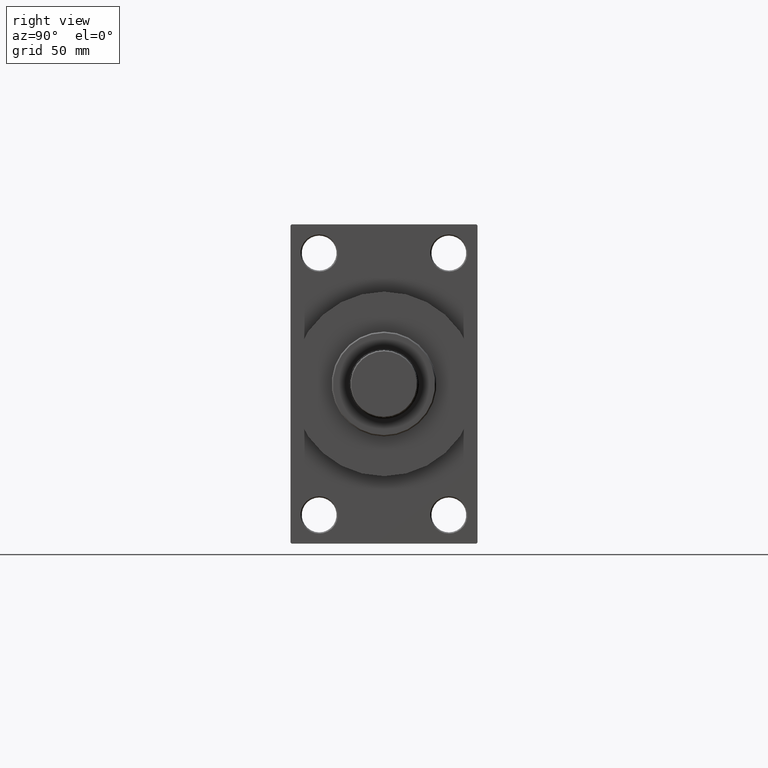
[diagram: clean part render]
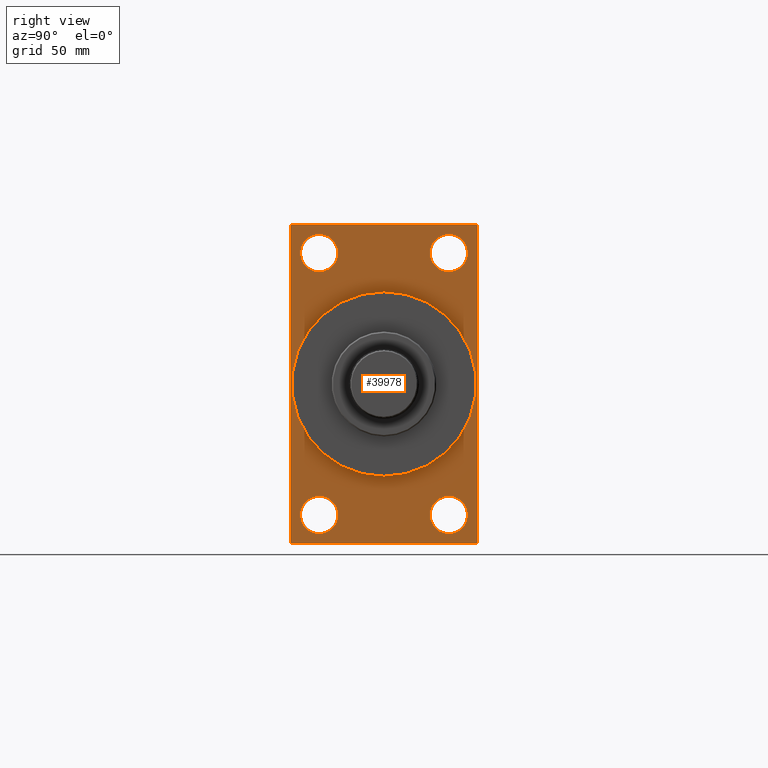
[diagram: same view with one face highlighted and labeled with its STEP entity id]
A machine part, right view. The second image highlights one B-rep face of the part: STEP entity #39978.
In plain terms, the highlighted planar face has unit normal (-1, 0, 0).
Its self-contained STEP definition (entity closure, byte-faithful):
#539 = EDGE_CURVE ( 'NONE', #16225, #42912, #1144, .T. ) ;
#853 = CARTESIAN_POINT ( 'NONE',  ( 167.9999999999999716, 26.00000000000000000, 60.00000000000000000 ) ) ;
#969 = CARTESIAN_POINT ( 'NONE',  ( 167.9999999999999716, 37.50000000000000000, 63.99999999999998579 ) ) ;
#1144 = LINE ( 'NONE', #11774, #9866 ) ;
#1373 = VERTEX_POINT ( 'NONE', #2453 ) ;
#1687 = VERTEX_POINT ( 'NONE', #40875 ) ;
#1760 = DIRECTION ( 'NONE',  ( 0.000000000000000000, 0.000000000000000000, 1.000000000000000000 ) ) ;
#2221 = EDGE_CURVE ( 'NONE', #32892, #7676, #41474, .T. ) ;
#2263 = CARTESIAN_POINT ( 'NONE',  ( 167.9999999999999716, 26.00000000000000000, -44.99999999999998579 ) ) ;
#2276 = VECTOR ( 'NONE', #35983, 1000.000000000000000 ) ;
#2453 = CARTESIAN_POINT ( 'NONE',  ( 167.9999999999999716, -25.99999999999999645, -44.99999999999998579 ) ) ;
#2567 = DIRECTION ( 'NONE',  ( 0.000000000000000000, 0.000000000000000000, -1.000000000000000000 ) ) ;
#2672 = FACE_BOUND ( 'NONE', #28652, .T. ) ;
#2909 = PLANE ( 'NONE',  #35505 ) ;
#3144 = FACE_BOUND ( 'NONE', #28000, .T. ) ;
#3871 = VERTEX_POINT ( 'NONE', #31866 ) ;
#4363 = VECTOR ( 'NONE', #6676, 1000.000000000000114 ) ;
#4831 = CIRCLE ( 'NONE', #22563, 37.00000000000000000 ) ;
#4983 = CARTESIAN_POINT ( 'NONE',  ( 167.9999999999999716, 37.49999999999999289, -64.00000000000000000 ) ) ;
#5401 = VECTOR ( 'NONE', #15686, 1000.000000000000000 ) ;
#5412 = EDGE_CURVE ( 'NONE', #14909, #20016, #22914, .T. ) ;
#5442 = ORIENTED_EDGE ( 'NONE', *, *, #42744, .T. ) ;
#6000 = AXIS2_PLACEMENT_3D ( 'NONE', #39438, #24975, #2567 ) ;
#6085 = EDGE_CURVE ( 'NONE', #3871, #8570, #43134, .T. ) ;
#6250 = EDGE_LOOP ( 'NONE', ( #31648, #35531 ) ) ;
#6676 = DIRECTION ( 'NONE',  ( -0.000000000000000000, 0.7071067811865376918, 0.7071067811865573427 ) ) ;
#6921 = CARTESIAN_POINT ( 'NONE',  ( 167.9999999999999716, 37.49999999999999289, -63.50000000000001421 ) ) ;
#7676 = VERTEX_POINT ( 'NONE', #14072 ) ;
#8218 = CIRCLE ( 'NONE', #14371, 7.500000000000007105 ) ;
#8244 = CARTESIAN_POINT ( 'NONE',  ( 167.9999999999999716, -25.99999999999999645, 52.50000000000000000 ) ) ;
#8392 = DIRECTION ( 'NONE',  ( -0.000000000000000000, -0.7071067811865524577, -0.7071067811865426878 ) ) ;
#8481 = DIRECTION ( 'NONE',  ( -1.000000000000000000, 0.000000000000000000, -0.000000000000000000 ) ) ;
#8555 = CARTESIAN_POINT ( 'NONE',  ( 167.9999999999999716, 37.00000000000000000, 63.99999999999998579 ) ) ;
#8570 = VERTEX_POINT ( 'NONE', #2263 ) ;
#9481 = DIRECTION ( 'NONE',  ( -1.000000000000000000, 0.000000000000000000, -0.000000000000000000 ) ) ;
#9613 = CARTESIAN_POINT ( 'NONE',  ( 167.9999999999999716, 37.50000000000000000, 63.49999999999998579 ) ) ;
#9866 = VECTOR ( 'NONE', #8392, 1000.000000000000000 ) ;
#10407 = DIRECTION ( 'NONE',  ( 0.000000000000000000, 0.000000000000000000, 1.000000000000000000 ) ) ;
#10681 = ORIENTED_EDGE ( 'NONE', *, *, #25110, .T. ) ;
#10954 = CIRCLE ( 'NONE', #46350, 7.500000000000007105 ) ;
#11315 = CARTESIAN_POINT ( 'NONE',  ( 167.9999999999999716, 37.49999999999999289, -63.50000000000001421 ) ) ;
#11367 = VECTOR ( 'NONE', #11767, 1000.000000000000114 ) ;
#11632 = VERTEX_POINT ( 'NONE', #46227 ) ;
#11683 = LINE ( 'NONE', #26367, #18567 ) ;
#11767 = DIRECTION ( 'NONE',  ( 0.000000000000000000, -0.7071067811865474617, 0.7071067811865474617 ) ) ;
#11774 = CARTESIAN_POINT ( 'NONE',  ( 167.9999999999999716, -37.49999999999999289, 63.50000000000000000 ) ) ;
#11804 = EDGE_CURVE ( 'NONE', #21720, #46250, #42070, .T. ) ;
#12177 = CARTESIAN_POINT ( 'NONE',  ( 167.9999999999999716, -37.49999999999999289, 63.50000000000000000 ) ) ;
#12678 = AXIS2_PLACEMENT_3D ( 'NONE', #28498, #9481, #28012 ) ;
#12985 = EDGE_LOOP ( 'NONE', ( #24717, #39377 ) ) ;
#13487 = AXIS2_PLACEMENT_3D ( 'NONE', #8244, #22945, #37634 ) ;
#13768 = DIRECTION ( 'NONE',  ( -1.000000000000000000, 0.000000000000000000, -0.000000000000000000 ) ) ;
#13898 = ORIENTED_EDGE ( 'NONE', *, *, #35466, .T. ) ;
#13928 = LINE ( 'NONE', #6921, #4363 ) ;
#14072 = CARTESIAN_POINT ( 'NONE',  ( 167.9999999999999716, -25.99999999999999645, 60.00000000000000711 ) ) ;
#14371 = AXIS2_PLACEMENT_3D ( 'NONE', #46108, #27534, #1760 ) ;
#14488 = CARTESIAN_POINT ( 'NONE',  ( 167.9999999999999716, -25.99999999999999645, 44.99999999999999289 ) ) ;
#14763 = EDGE_CURVE ( 'NONE', #18149, #1687, #4831, .T. ) ;
#14909 = VERTEX_POINT ( 'NONE', #9613 ) ;
#15642 = ORIENTED_EDGE ( 'NONE', *, *, #539, .T. ) ;
#15650 = VERTEX_POINT ( 'NONE', #8555 ) ;
#15686 = DIRECTION ( 'NONE',  ( 0.000000000000000000, -5.421010862427522170E-17, -1.000000000000000000 ) ) ;
#15898 = DIRECTION ( 'NONE',  ( 1.000000000000000000, 0.000000000000000000, 0.000000000000000000 ) ) ;
#16036 = DIRECTION ( 'NONE',  ( -1.000000000000000000, 0.000000000000000000, -0.000000000000000000 ) ) ;
#16225 = VERTEX_POINT ( 'NONE', #17517 ) ;
#16545 = CARTESIAN_POINT ( 'NONE',  ( 167.9999999999999716, -25.99999999999999645, -60.00000000000000000 ) ) ;
#17143 = DIRECTION ( 'NONE',  ( -1.000000000000000000, 0.000000000000000000, -0.000000000000000000 ) ) ;
#17240 = ORIENTED_EDGE ( 'NONE', *, *, #14763, .F. ) ;
#17378 = FACE_BOUND ( 'NONE', #12985, .T. ) ;
#17517 = CARTESIAN_POINT ( 'NONE',  ( 167.9999999999999716, -37.00000000000001421, 63.99999999999997158 ) ) ;
#17528 = DIRECTION ( 'NONE',  ( -1.000000000000000000, 0.000000000000000000, -0.000000000000000000 ) ) ;
#17811 = AXIS2_PLACEMENT_3D ( 'NONE', #23873, #8481, #31318 ) ;
#17847 = FACE_BOUND ( 'NONE', #6250, .T. ) ;
#18149 = VERTEX_POINT ( 'NONE', #20916 ) ;
#18566 = CARTESIAN_POINT ( 'NONE',  ( 167.9999999999999716, -37.49999999999999289, -63.50000000000002842 ) ) ;
#18567 = VECTOR ( 'NONE', #41080, 1000.000000000000000 ) ;
#20016 = VERTEX_POINT ( 'NONE', #11315 ) ;
#20572 = LINE ( 'NONE', #28025, #41508 ) ;
#20782 = EDGE_CURVE ( 'NONE', #35078, #1373, #28839, .T. ) ;
#20916 = CARTESIAN_POINT ( 'NONE',  ( 167.9999999999999716, 4.531193156845206793E-15, -37.00000000000000000 ) ) ;
#20917 = EDGE_CURVE ( 'NONE', #7676, #32892, #34236, .T. ) ;
#21231 = FACE_OUTER_BOUND ( 'NONE', #35308, .T. ) ;
#21258 = DIRECTION ( 'NONE',  ( -1.000000000000000000, 0.000000000000000000, -0.000000000000000000 ) ) ;
#21720 = VERTEX_POINT ( 'NONE', #24622 ) ;
#22365 = AXIS2_PLACEMENT_3D ( 'NONE', #35037, #16036, #27326 ) ;
#22563 = AXIS2_PLACEMENT_3D ( 'NONE', #23364, #15898, #26500 ) ;
#22826 = ORIENTED_EDGE ( 'NONE', *, *, #39519, .T. ) ;
#22914 = LINE ( 'NONE', #969, #5401 ) ;
#22945 = DIRECTION ( 'NONE',  ( -1.000000000000000000, 0.000000000000000000, -0.000000000000000000 ) ) ;
#23364 = CARTESIAN_POINT ( 'NONE',  ( 167.9999999999999716, 0.000000000000000000, 0.000000000000000000 ) ) ;
#23873 = CARTESIAN_POINT ( 'NONE',  ( 167.9999999999999716, 26.00000000000000000, -52.49999999999999289 ) ) ;
#23891 = EDGE_CURVE ( 'NONE', #42933, #11632, #24342, .T. ) ;
#24342 = CIRCLE ( 'NONE', #27383, 7.500000000000007105 ) ;
#24359 = FACE_BOUND ( 'NONE', #45282, .T. ) ;
#24361 = DIRECTION ( 'NONE',  ( 0.000000000000000000, 0.000000000000000000, 1.000000000000000000 ) ) ;
#24383 = EDGE_CURVE ( 'NONE', #11632, #42933, #8218, .T. ) ;
#24481 = ORIENTED_EDGE ( 'NONE', *, *, #2221, .T. ) ;
#24622 = CARTESIAN_POINT ( 'NONE',  ( 167.9999999999999716, 37.00000000000002132, -64.00000000000000000 ) ) ;
#24717 = ORIENTED_EDGE ( 'NONE', *, *, #24383, .T. ) ;
#24975 = DIRECTION ( 'NONE',  ( 1.000000000000000000, 0.000000000000000000, 0.000000000000000000 ) ) ;
#25110 = EDGE_CURVE ( 'NONE', #21720, #20016, #13928, .T. ) ;
#26367 = CARTESIAN_POINT ( 'NONE',  ( 167.9999999999999716, -36.99999999999999289, -64.00000000000001421 ) ) ;
#26500 = DIRECTION ( 'NONE',  ( 0.000000000000000000, 0.000000000000000000, -1.000000000000000000 ) ) ;
#26551 = ORIENTED_EDGE ( 'NONE', *, *, #31510, .F. ) ;
#27326 = DIRECTION ( 'NONE',  ( 0.000000000000000000, 0.000000000000000000, 1.000000000000000000 ) ) ;
#27383 = AXIS2_PLACEMENT_3D ( 'NONE', #31571, #17143, #24361 ) ;
#27534 = DIRECTION ( 'NONE',  ( -1.000000000000000000, 0.000000000000000000, -0.000000000000000000 ) ) ;
#28000 = EDGE_LOOP ( 'NONE', ( #32724, #5442 ) ) ;
#28012 = DIRECTION ( 'NONE',  ( 0.000000000000000000, 0.000000000000000000, 1.000000000000000000 ) ) ;
#28025 = CARTESIAN_POINT ( 'NONE',  ( 167.9999999999999716, -37.49999999999999289, 63.99999999999997158 ) ) ;
#28498 = CARTESIAN_POINT ( 'NONE',  ( 167.9999999999999716, -25.99999999999999645, -52.49999999999999289 ) ) ;
#28652 = EDGE_LOOP ( 'NONE', ( #24481, #39439 ) ) ;
#28705 = CARTESIAN_POINT ( 'NONE',  ( 167.9999999999999716, -25.99999999999999645, 52.50000000000000000 ) ) ;
#28839 = CIRCLE ( 'NONE', #12678, 7.500000000000007105 ) ;
#28864 = ORIENTED_EDGE ( 'NONE', *, *, #34546, .T. ) ;
#30142 = VECTOR ( 'NONE', #37527, 1000.000000000000000 ) ;
#31318 = DIRECTION ( 'NONE',  ( 0.000000000000000000, 0.000000000000000000, 1.000000000000000000 ) ) ;
#31453 = EDGE_CURVE ( 'NONE', #14909, #15650, #47666, .T. ) ;
#31510 = EDGE_CURVE ( 'NONE', #1687, #18149, #38294, .T. ) ;
#31571 = CARTESIAN_POINT ( 'NONE',  ( 167.9999999999999716, 26.00000000000000000, 52.49999999999999289 ) ) ;
#31648 = ORIENTED_EDGE ( 'NONE', *, *, #6085, .T. ) ;
#31866 = CARTESIAN_POINT ( 'NONE',  ( 167.9999999999999716, 26.00000000000000000, -60.00000000000000000 ) ) ;
#32125 = DIRECTION ( 'NONE',  ( 0.000000000000000000, 0.000000000000000000, -1.000000000000000000 ) ) ;
#32132 = LINE ( 'NONE', #35751, #2276 ) ;
#32724 = ORIENTED_EDGE ( 'NONE', *, *, #20782, .T. ) ;
#32892 = VERTEX_POINT ( 'NONE', #14488 ) ;
#33755 = VERTEX_POINT ( 'NONE', #18566 ) ;
#33973 = CARTESIAN_POINT ( 'NONE',  ( 167.9999999999999716, -36.99999999999999289, -64.00000000000001421 ) ) ;
#34236 = CIRCLE ( 'NONE', #13487, 7.500000000000007105 ) ;
#34546 = EDGE_CURVE ( 'NONE', #42912, #33755, #20572, .T. ) ;
#35037 = CARTESIAN_POINT ( 'NONE',  ( 167.9999999999999716, 26.00000000000000000, -52.49999999999999289 ) ) ;
#35078 = VERTEX_POINT ( 'NONE', #16545 ) ;
#35190 = CARTESIAN_POINT ( 'NONE',  ( 167.9999999999999716, 0.000000000000000000, 0.000000000000000000 ) ) ;
#35308 = EDGE_LOOP ( 'NONE', ( #28864, #22826, #44547, #10681, #40482, #44683, #13898, #15642 ) ) ;
#35343 = CARTESIAN_POINT ( 'NONE',  ( 167.9999999999999716, -25.99999999999999645, -52.49999999999999289 ) ) ;
#35466 = EDGE_CURVE ( 'NONE', #15650, #16225, #32132, .T. ) ;
#35505 = AXIS2_PLACEMENT_3D ( 'NONE', #35190, #13768, #42918 ) ;
#35531 = ORIENTED_EDGE ( 'NONE', *, *, #39832, .T. ) ;
#35588 = DIRECTION ( 'NONE',  ( 0.000000000000000000, 0.000000000000000000, 1.000000000000000000 ) ) ;
#35751 = CARTESIAN_POINT ( 'NONE',  ( 167.9999999999999716, 37.50000000000000000, 63.99999999999998579 ) ) ;
#35983 = DIRECTION ( 'NONE',  ( 0.000000000000000000, -1.000000000000000000, -1.850371707708594563E-16 ) ) ;
#37527 = DIRECTION ( 'NONE',  ( 0.000000000000000000, -1.000000000000000000, -1.850371707708594563E-16 ) ) ;
#37634 = DIRECTION ( 'NONE',  ( 0.000000000000000000, 0.000000000000000000, 1.000000000000000000 ) ) ;
#38294 = CIRCLE ( 'NONE', #6000, 37.00000000000000000 ) ;
#38559 = CIRCLE ( 'NONE', #17811, 7.500000000000007105 ) ;
#39377 = ORIENTED_EDGE ( 'NONE', *, *, #23891, .T. ) ;
#39438 = CARTESIAN_POINT ( 'NONE',  ( 167.9999999999999716, 0.000000000000000000, 0.000000000000000000 ) ) ;
#39439 = ORIENTED_EDGE ( 'NONE', *, *, #20917, .T. ) ;
#39519 = EDGE_CURVE ( 'NONE', #33755, #46250, #11683, .T. ) ;
#39832 = EDGE_CURVE ( 'NONE', #8570, #3871, #38559, .T. ) ;
#39978 = ADVANCED_FACE ( 'NONE', ( #2672, #3144, #17847, #17378, #24359, #21231 ), #2909, .F. ) ;
#40482 = ORIENTED_EDGE ( 'NONE', *, *, #5412, .F. ) ;
#40875 = CARTESIAN_POINT ( 'NONE',  ( 167.9999999999999716, 0.000000000000000000, 37.00000000000000000 ) ) ;
#41080 = DIRECTION ( 'NONE',  ( 0.000000000000000000, 0.7071067811865573427, -0.7071067811865378028 ) ) ;
#41474 = CIRCLE ( 'NONE', #42212, 7.500000000000007105 ) ;
#41508 = VECTOR ( 'NONE', #32125, 1000.000000000000000 ) ;
#42070 = LINE ( 'NONE', #4983, #30142 ) ;
#42212 = AXIS2_PLACEMENT_3D ( 'NONE', #28705, #21258, #10407 ) ;
#42744 = EDGE_CURVE ( 'NONE', #1373, #35078, #10954, .T. ) ;
#42912 = VERTEX_POINT ( 'NONE', #12177 ) ;
#42918 = DIRECTION ( 'NONE',  ( -0.000000000000000000, 0.000000000000000000, 1.000000000000000000 ) ) ;
#42933 = VERTEX_POINT ( 'NONE', #853 ) ;
#43134 = CIRCLE ( 'NONE', #22365, 7.500000000000007105 ) ;
#44547 = ORIENTED_EDGE ( 'NONE', *, *, #11804, .F. ) ;
#44683 = ORIENTED_EDGE ( 'NONE', *, *, #31453, .T. ) ;
#44787 = CARTESIAN_POINT ( 'NONE',  ( 167.9999999999999716, 37.00000000000000000, 63.99999999999998579 ) ) ;
#45282 = EDGE_LOOP ( 'NONE', ( #26551, #17240 ) ) ;
#46108 = CARTESIAN_POINT ( 'NONE',  ( 167.9999999999999716, 26.00000000000000000, 52.49999999999999289 ) ) ;
#46227 = CARTESIAN_POINT ( 'NONE',  ( 167.9999999999999716, 26.00000000000000000, 44.99999999999998579 ) ) ;
#46250 = VERTEX_POINT ( 'NONE', #33973 ) ;
#46350 = AXIS2_PLACEMENT_3D ( 'NONE', #35343, #17528, #35588 ) ;
#47666 = LINE ( 'NONE', #44787, #11367 ) ;